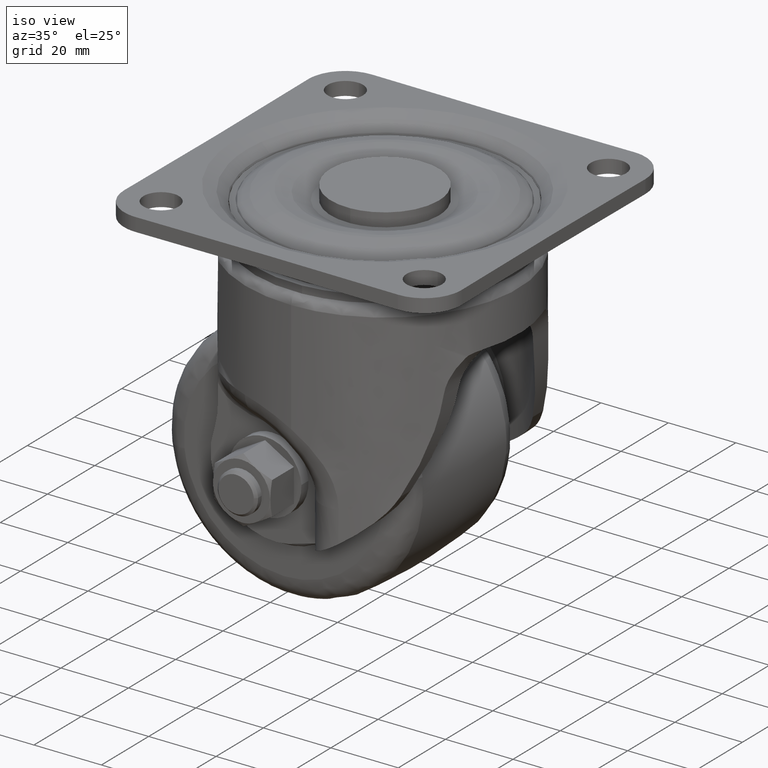
[diagram: clean part render]
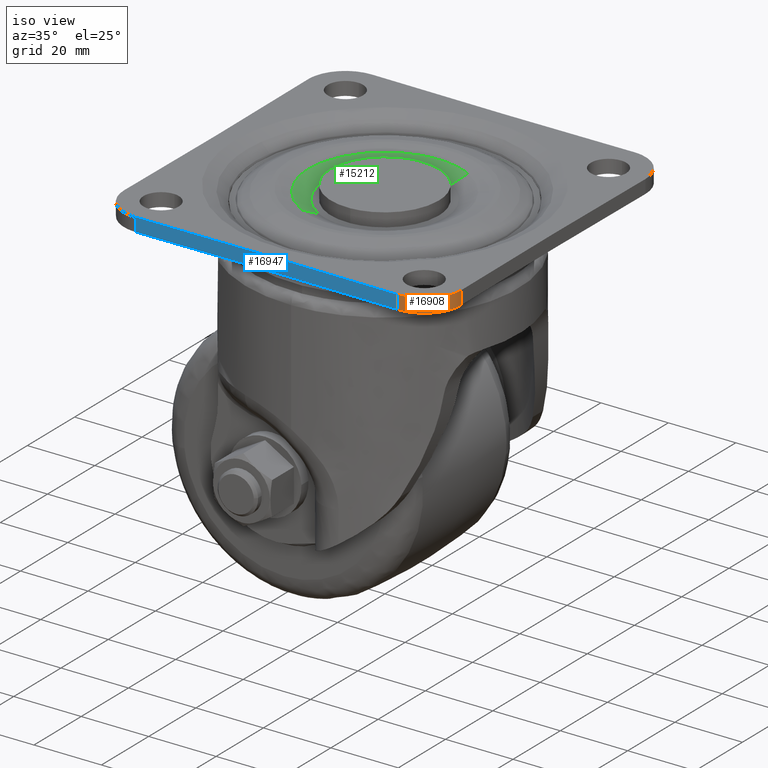
[diagram: same view with three faces highlighted in distinct colors, each labeled with its STEP entity id]
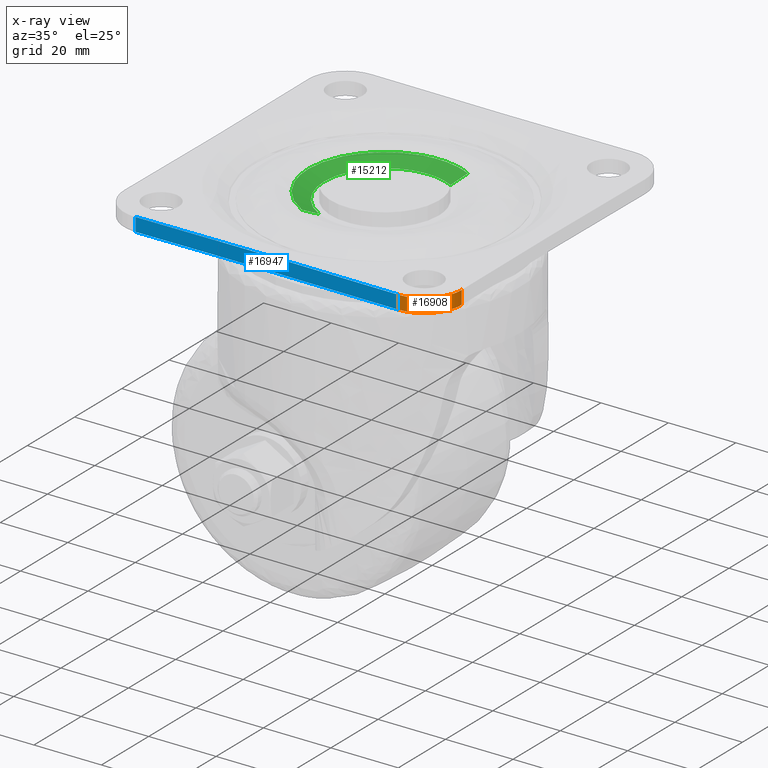
[diagram: x-ray of the same camera — body ghosted, the three highlighted faces saturated]
A machine part, iso view with three faces highlighted in distinct colors.
The next image is the same camera in x-ray (body ghosted, the three faces saturated) — at least one of them is partly hidden behind the body in this view.
Their STEP definitions:

[orange] entity #16908 — the highlighted face is a freeform B-spline surface patch.
#16745=CARTESIAN_POINT('',(38.859112224408648,-49.999107261167403,0.0));
#16746=VERTEX_POINT('',#16745);
#16760=CARTESIAN_POINT('',(49.999086581534897,-38.859138427465403,0.0));
#16761=VERTEX_POINT('',#16760);
#16762=CARTESIAN_POINT('',(38.859112224408648,-49.999107261167403,0.0));
#16763=CARTESIAN_POINT('',(39.590740556758973,-50.008577002566092,0.0));
#16764=CARTESIAN_POINT('',(40.964266549595962,-49.888686975865880,0.0));
#16765=CARTESIAN_POINT('',(42.997153043311819,-49.317301009768997,0.0));
#16766=CARTESIAN_POINT('',(44.725802692958680,-48.458381832613703,0.0));
#16767=CARTESIAN_POINT('',(46.275573588022041,-47.314715594379408,0.0));
#16768=CARTESIAN_POINT('',(47.397399532365583,-46.164546555663833,0.0));
#16769=CARTESIAN_POINT('',(48.449094877443628,-44.720640606517257,0.0));
#16770=CARTESIAN_POINT('',(49.182740579580738,-43.289145202963212,0.0));
#16771=CARTESIAN_POINT('',(49.842686737763252,-41.239177833148617,0.0));
#16772=CARTESIAN_POINT('',(50.011696107789767,-39.819436544613353,0.0));
#16773=CARTESIAN_POINT('',(49.999086581534897,-38.859138427465403,0.0));
#16774=B_SPLINE_CURVE_WITH_KNOTS('',3,(#16762,#16763,#16764,#16765,#16766,#16767,#16768,#16769,#16770,#16771,#16772,#16773),.UNSPECIFIED.,.F.,.U.,(4,1,1,1,1,1,1,1,1,4),(0.000000041236369,2.195061499117408,4.115786445490356,6.310878562661907,7.957221728796965,9.877852845926746,11.112611838742470,13.307715126677600,14.679660456290399,17.560693995647881),.UNSPECIFIED.);
#16775=EDGE_CURVE('',#16746,#16761,#16774,.T.);
#16838=CARTESIAN_POINT('',(49.999086581534897,-38.859138427465403,-4.000005999999945));
#16839=VERTEX_POINT('',#16838);
#16840=CARTESIAN_POINT('',(49.999086581534897,-38.859138427465403,-4.000005999999945));
#16841=CARTESIAN_POINT('',(49.999086581534897,-38.859138427465403,0.0));
#16842=QUASI_UNIFORM_CURVE('',1,(#16840,#16841),.UNSPECIFIED.,.F.,.U.);
#16843=EDGE_CURVE('',#16839,#16761,#16842,.T.);
#16868=CARTESIAN_POINT('',(49.987180441061277,-38.469444145689437,-4.100006149999945));
#16869=CARTESIAN_POINT('',(49.987180441061277,-38.469444145689437,0.102500153749999));
#16870=CARTESIAN_POINT('',(50.593133828491105,-51.014198015991347,-4.100006149999944));
#16871=CARTESIAN_POINT('',(50.593133828491105,-51.014198015991347,0.102500153749999));
#16872=CARTESIAN_POINT('',(38.077966611911556,-49.961288373502860,-4.100006149999945));
#16873=CARTESIAN_POINT('',(38.077966611911556,-49.961288373502860,0.102500153749999));
#16881=(BOUNDED_SURFACE()B_SPLINE_SURFACE(1,2,((#16868,#16870,#16872),(#16869,#16871,#16873)),.UNSPECIFIED.,.F.,.F.,.U.)B_SPLINE_SURFACE_WITH_KNOTS((2,2),(3,3),(0.0,4.202506303749943),(0.0,19.953089833009610),.UNSPECIFIED.)GEOMETRIC_REPRESENTATION_ITEM()RATIONAL_B_SPLINE_SURFACE(((1.0,0.657748627972973,0.996637402236627),(1.0,0.657748627972973,0.996637402236627)))REPRESENTATION_ITEM('')SURFACE());
#16882=ORIENTED_EDGE('',*,*,#16775,.F.);
#16883=CARTESIAN_POINT('',(38.859112224408648,-49.999107261167403,-4.000005999999945));
#16884=VERTEX_POINT('',#16883);
#16885=CARTESIAN_POINT('',(38.859112224408648,-49.999107261167403,-4.000005999999945));
#16886=CARTESIAN_POINT('',(38.859112224408648,-49.999107261167403,0.0));
#16887=QUASI_UNIFORM_CURVE('',1,(#16885,#16886),.UNSPECIFIED.,.F.,.U.);
#16888=EDGE_CURVE('',#16884,#16746,#16887,.T.);
#16889=ORIENTED_EDGE('',*,*,#16888,.F.);
#16890=CARTESIAN_POINT('',(38.859112224408648,-49.999107261167403,-4.000005999999945));
#16891=CARTESIAN_POINT('',(39.590738382218461,-50.008575948493139,-4.000005999999947));
#16892=CARTESIAN_POINT('',(40.872692545834042,-49.896660290224617,-4.000005999999942));
#16893=CARTESIAN_POINT('',(42.910510485957239,-49.351257144265709,-4.000005999999955));
#16894=CARTESIAN_POINT('',(44.652025024700997,-48.512897578222557,-4.000005999999927));
#16895=CARTESIAN_POINT('',(46.275569401386988,-47.314705198689623,-4.000005999999991));
#16896=CARTESIAN_POINT('',(47.397400085875177,-46.164547972837262,-4.000005999999869));
#16897=CARTESIAN_POINT('',(48.449094668650503,-44.720640071935847,-4.000005999999935));
#16898=CARTESIAN_POINT('',(49.182740644349778,-43.289145368793733,-4.000006000000000));
#16899=CARTESIAN_POINT('',(49.842686703560219,-41.239177745577422,-4.000005999999896));
#16900=CARTESIAN_POINT('',(50.011696119351740,-39.819436574215878,-4.000005999999982));
#16901=CARTESIAN_POINT('',(49.999086581534897,-38.859138427465403,-4.000005999999945));
#16902=B_SPLINE_CURVE_WITH_KNOTS('',3,(#16890,#16891,#16892,#16893,#16894,#16895,#16896,#16897,#16898,#16899,#16900,#16901),.UNSPECIFIED.,.F.,.U.,(4,1,1,1,1,1,1,1,1,4),(0.000000041236369,2.195061499117408,3.841396808126236,6.310878562661907,7.957221728796965,9.877852845926746,11.112611838742470,13.307715126677600,14.679660456290399,17.560693995647881),.UNSPECIFIED.);
#16903=EDGE_CURVE('',#16884,#16839,#16902,.T.);
#16904=ORIENTED_EDGE('',*,*,#16903,.T.);
#16905=ORIENTED_EDGE('',*,*,#16843,.T.);
#16906=EDGE_LOOP('',(#16882,#16889,#16904,#16905));
#16907=FACE_OUTER_BOUND('',#16906,.T.);
#16908=ADVANCED_FACE('',(#16907),#16881,.T.);

[blue] entity #16947 — the highlighted face is a freeform B-spline surface patch.
#16729=CARTESIAN_POINT('',(-38.859143584878602,-49.999107511081000,0.0));
#16730=VERTEX_POINT('',#16729);
#16745=CARTESIAN_POINT('',(38.859112224408648,-49.999107261167403,0.0));
#16746=VERTEX_POINT('',#16745);
#16747=CARTESIAN_POINT('',(38.859112224408648,-49.999107261167403,0.0));
#16748=CARTESIAN_POINT('',(-0.000015681835654,-49.500878411463674,0.0));
#16749=CARTESIAN_POINT('',(-38.859143584898099,-49.999107509454802,0.0));
#16757=(BOUNDED_CURVE()B_SPLINE_CURVE(2,(#16747,#16748,#16749),.UNSPECIFIED.,.F.,.U.)CURVE()GEOMETRIC_REPRESENTATION_ITEM()QUASI_UNIFORM_CURVE()RATIONAL_B_SPLINE_CURVE((1.0,0.999917815801585,1.0))REPRESENTATION_ITEM(''));
#16758=EDGE_CURVE('',#16746,#16730,#16757,.T.);
#16883=CARTESIAN_POINT('',(38.859112224408648,-49.999107261167403,-4.000005999999945));
#16884=VERTEX_POINT('',#16883);
#16885=CARTESIAN_POINT('',(38.859112224408648,-49.999107261167403,-4.000005999999945));
#16886=CARTESIAN_POINT('',(38.859112224408648,-49.999107261167403,0.0));
#16887=QUASI_UNIFORM_CURVE('',1,(#16885,#16886),.UNSPECIFIED.,.F.,.U.);
#16888=EDGE_CURVE('',#16884,#16746,#16887,.T.);
#16909=CARTESIAN_POINT('',(-42.740236610172815,-50.051354042444459,-4.100006149999944));
#16910=CARTESIAN_POINT('',(-42.740236610172815,-50.051354042444459,0.102500153749999));
#16911=CARTESIAN_POINT('',(0.000548148207039,-49.448614450071382,-4.100006149999944));
#16912=CARTESIAN_POINT('',(0.000548148207039,-49.448614450071382,0.102500153749999));
#16913=CARTESIAN_POINT('',(42.741332686216353,-50.051369668906467,-4.100006149999944));
#16914=CARTESIAN_POINT('',(42.741332686216353,-50.051369668906467,0.102500153749999));
#16922=(BOUNDED_SURFACE()B_SPLINE_SURFACE(1,2,((#16909,#16911,#16913),(#16910,#16912,#16914)),.UNSPECIFIED.,.F.,.F.,.U.)B_SPLINE_SURFACE_WITH_KNOTS((2,2),(3,3),(0.0,4.202506303749942),(103.628898730468800,189.124641308593710),.UNSPECIFIED.)GEOMETRIC_REPRESENTATION_ITEM()RATIONAL_B_SPLINE_SURFACE(((0.999099411628214,0.998848308997542,0.998795868034798),(0.999099411628214,0.998848308997542,0.998795868034798)))REPRESENTATION_ITEM('')SURFACE());
#16923=ORIENTED_EDGE('',*,*,#16758,.T.);
#16924=CARTESIAN_POINT('',(-38.859143584878602,-49.999107511081000,-4.000005999999945));
#16925=VERTEX_POINT('',#16924);
#16926=CARTESIAN_POINT('',(-38.859143584878602,-49.999107511081000,-4.000005999999945));
#16927=CARTESIAN_POINT('',(-38.859143584878602,-49.999107511081000,0.0));
#16928=QUASI_UNIFORM_CURVE('',1,(#16926,#16927),.UNSPECIFIED.,.F.,.U.);
#16929=EDGE_CURVE('',#16925,#16730,#16928,.T.);
#16930=ORIENTED_EDGE('',*,*,#16929,.F.);
#16931=CARTESIAN_POINT('',(38.859112224408648,-49.999107261167403,-4.000005999999945));
#16932=CARTESIAN_POINT('',(-0.000015681835654,-49.500878411463674,-4.000005999999946));
#16933=CARTESIAN_POINT('',(-38.859143584898099,-49.999107509454802,-4.000005999999945));
#16941=(BOUNDED_CURVE()B_SPLINE_CURVE(2,(#16931,#16932,#16933),.UNSPECIFIED.,.F.,.U.)CURVE()GEOMETRIC_REPRESENTATION_ITEM()QUASI_UNIFORM_CURVE()RATIONAL_B_SPLINE_CURVE((1.0,0.999917815801585,1.0))REPRESENTATION_ITEM(''));
#16942=EDGE_CURVE('',#16884,#16925,#16941,.T.);
#16943=ORIENTED_EDGE('',*,*,#16942,.F.);
#16944=ORIENTED_EDGE('',*,*,#16888,.T.);
#16945=EDGE_LOOP('',(#16923,#16930,#16943,#16944));
#16946=FACE_OUTER_BOUND('',#16945,.T.);
#16947=ADVANCED_FACE('',(#16946),#16922,.F.);

[green] entity #15212 — the highlighted face is a freeform B-spline surface patch.
#14930=CARTESIAN_POINT('',(-10.480602808884299,-20.133050675491731,-1.883008796970517));
#14931=VERTEX_POINT('',#14930);
#14947=CARTESIAN_POINT('',(-22.697637866939900,0.0,-1.883008796979193));
#14948=VERTEX_POINT('',#14947);
#14949=CARTESIAN_POINT('',(-10.480602808884298,-20.133050675491724,-1.883008796970518));
#14950=CARTESIAN_POINT('',(-22.697637866940255,-13.773264768733080,-1.883008796975674));
#14951=CARTESIAN_POINT('',(-22.697637866939900,0.0,-1.883008796979193));
#14959=(BOUNDED_CURVE()B_SPLINE_CURVE(2,(#14949,#14950,#14951),.UNSPECIFIED.,.F.,.U.)B_SPLINE_CURVE_WITH_KNOTS((3,3),(0.828552124121940,1.0),.UNSPECIFIED.)CURVE()GEOMETRIC_REPRESENTATION_ITEM()RATIONAL_B_SPLINE_CURVE((0.873773849651696,0.799136319101383,1.0))REPRESENTATION_ITEM(''));
#14960=EDGE_CURVE('',#14931,#14948,#14959,.T.);
#14962=CARTESIAN_POINT('',(-9.405346878305240,20.657255743164541,-1.883008796969206));
#14963=VERTEX_POINT('',#14962);
#14964=CARTESIAN_POINT('',(-22.697637866939900,0.0,-1.883008796979193));
#14965=CARTESIAN_POINT('',(-22.697637866944486,14.605212378346195,-1.883008796974200));
#14966=CARTESIAN_POINT('',(-9.405346878305240,20.657255743164534,-1.883008796969207));
#14974=(BOUNDED_CURVE()B_SPLINE_CURVE(2,(#14964,#14965,#14966),.UNSPECIFIED.,.F.,.U.)B_SPLINE_CURVE_WITH_KNOTS((3,3),(0.0,0.179624510041870),.UNSPECIFIED.)CURVE()GEOMETRIC_REPRESENTATION_ITEM()RATIONAL_B_SPLINE_CURVE((1.0,0.789556796304189,0.881519651452390))REPRESENTATION_ITEM(''));
#14975=EDGE_CURVE('',#14948,#14963,#14974,.T.);
#15056=CARTESIAN_POINT('',(10.480602808884290,20.133050675491731,-1.883008796970520));
#15057=VERTEX_POINT('',#15056);
#15058=CARTESIAN_POINT('',(-9.405346878305240,20.657255743164534,-1.883008796969207));
#15059=CARTESIAN_POINT('',(-4.923992188212670,22.697637866960498,-1.883008796969205));
#15060=CARTESIAN_POINT('',(-5.519794E-012,22.697637866960360,-1.883008796969513));
#15061=CARTESIAN_POINT('',(5.554076651081838,22.697637866960203,-1.883008796969860));
#15062=CARTESIAN_POINT('',(10.480602808884294,20.133050675491734,-1.883008796970520));
#15070=(BOUNDED_CURVE()B_SPLINE_CURVE(2,(#15058,#15059,#15060,#15061,#15062),.UNSPECIFIED.,.F.,.U.)B_SPLINE_CURVE_WITH_KNOTS((3,2,3),(0.179624510041870,0.250000000000000,0.328552124121940),.UNSPECIFIED.)CURVE()GEOMETRIC_REPRESENTATION_ITEM()RATIONAL_B_SPLINE_CURVE((0.881519651452390,0.917549984882358,1.0,0.907970462085164,0.873773849651696))REPRESENTATION_ITEM(''));
#15071=EDGE_CURVE('',#14963,#15057,#15070,.T.);
#15110=CARTESIAN_POINT('',(8.311475038278250,15.966194997187410,-4.000005999998247));
#15111=VERTEX_POINT('',#15110);
#15112=CARTESIAN_POINT('',(8.311475038278250,15.966194997187410,-4.000005999998247));
#15113=CARTESIAN_POINT('',(10.480602808884290,20.133050675491731,-1.883008796970520));
#15114=QUASI_UNIFORM_CURVE('',1,(#15112,#15113),.UNSPECIFIED.,.F.,.U.);
#15115=EDGE_CURVE('',#15111,#15057,#15114,.T.);
#15132=CARTESIAN_POINT('',(-8.311475038278250,-15.966194997187410,-4.000005999998248));
#15133=VERTEX_POINT('',#15132);
#15149=CARTESIAN_POINT('',(-8.311475038278250,-15.966194997187410,-4.000005999998248));
#15150=CARTESIAN_POINT('',(-10.480602808884299,-20.133050675491731,-1.883008796970517));
#15151=QUASI_UNIFORM_CURVE('',1,(#15149,#15150),.UNSPECIFIED.,.F.,.U.);
#15152=EDGE_CURVE('',#15133,#14931,#15151,.T.);
#15157=CARTESIAN_POINT('',(8.257246843966861,15.862023605249419,-4.052930930075698));
#15158=CARTESIAN_POINT('',(-7.604776761282555,24.119270449216280,-4.052930930075699));
#15159=CARTESIAN_POINT('',(-15.862023605249419,8.257246843966861,-4.052930930075698));
#15160=CARTESIAN_POINT('',(-24.119270449216280,-7.604776761282555,-4.052930930075699));
#15161=CARTESIAN_POINT('',(-8.257246843966861,-15.862023605249419,-4.052930930075698));
#15162=CARTESIAN_POINT('',(10.536186707901081,20.239826352309141,-1.828760743641544));
#15163=CARTESIAN_POINT('',(-9.703639644408069,30.776013060210222,-1.828760743641544));
#15164=CARTESIAN_POINT('',(-20.239826352309141,10.536186707901081,-1.828760743641544));
#15165=CARTESIAN_POINT('',(-30.776013060210222,-9.703639644408069,-1.828760743641544));
#15166=CARTESIAN_POINT('',(-10.536186707901081,-20.239826352309141,-1.828760743641544));
#15174=(BOUNDED_SURFACE()B_SPLINE_SURFACE(2,1,((#15157,#15162),(#15158,#15163),(#15159,#15164),(#15160,#15165),(#15161,#15166)),.UNSPECIFIED.,.F.,.F.,.U.)B_SPLINE_SURFACE_WITH_KNOTS((3,2,3),(2,2),(0.0,37.806124848165631,75.612249696331261),(0.0,5.413469942081026),.UNSPECIFIED.)GEOMETRIC_REPRESENTATION_ITEM()RATIONAL_B_SPLINE_SURFACE(((1.0,1.0),(0.707106781186548,0.707106781186548),(1.0,1.0),(0.707106781186548,0.707106781186548),(1.0,1.0)))REPRESENTATION_ITEM('')SURFACE());
#15175=ORIENTED_EDGE('',*,*,#14960,.F.);
#15176=ORIENTED_EDGE('',*,*,#15152,.F.);
#15177=CARTESIAN_POINT('',(-18.0,0.0,-4.000005999999929));
#15178=VERTEX_POINT('',#15177);
#15179=CARTESIAN_POINT('',(-8.311475038278250,-15.966194997187404,-4.000005999998248));
#15180=CARTESIAN_POINT('',(-18.000000000000860,-10.922668133628978,-4.000005999999088));
#15181=CARTESIAN_POINT('',(-18.0,0.0,-4.000005999999929));
#15189=(BOUNDED_CURVE()B_SPLINE_CURVE(2,(#15179,#15180,#15181),.UNSPECIFIED.,.F.,.U.)B_SPLINE_CURVE_WITH_KNOTS((3,3),(0.828552124121505,1.0),.UNSPECIFIED.)CURVE()GEOMETRIC_REPRESENTATION_ITEM()RATIONAL_B_SPLINE_CURVE((0.873773849652075,0.799136319100874,1.0))REPRESENTATION_ITEM(''));
#15190=EDGE_CURVE('',#15133,#15178,#15189,.T.);
#15191=ORIENTED_EDGE('',*,*,#15190,.T.);
#15192=CARTESIAN_POINT('',(-18.0,0.0,-4.000005999999929));
#15193=CARTESIAN_POINT('',(-17.999999999999485,18.000000000001013,-4.000005999999417));
#15194=CARTESIAN_POINT('',(1.388606E-012,18.000000000002661,-4.000005999998577));
#15195=CARTESIAN_POINT('',(4.404571978151647,18.000000000003073,-4.000005999998372));
#15196=CARTESIAN_POINT('',(8.311475038278250,15.966194997187417,-4.000005999998247));
#15204=(BOUNDED_CURVE()B_SPLINE_CURVE(2,(#15192,#15193,#15194,#15195,#15196),.UNSPECIFIED.,.F.,.U.)B_SPLINE_CURVE_WITH_KNOTS((3,2,3),(0.0,0.250000000000000,0.328552124121505),.UNSPECIFIED.)CURVE()GEOMETRIC_REPRESENTATION_ITEM()RATIONAL_B_SPLINE_CURVE((1.0,0.707106781186547,1.0,0.907970462085674,0.873773849652075))REPRESENTATION_ITEM(''));
#15205=EDGE_CURVE('',#15178,#15111,#15204,.T.);
#15206=ORIENTED_EDGE('',*,*,#15205,.T.);
#15207=ORIENTED_EDGE('',*,*,#15115,.T.);
#15208=ORIENTED_EDGE('',*,*,#15071,.F.);
#15209=ORIENTED_EDGE('',*,*,#14975,.F.);
#15210=EDGE_LOOP('',(#15175,#15176,#15191,#15206,#15207,#15208,#15209));
#15211=FACE_OUTER_BOUND('',#15210,.T.);
#15212=ADVANCED_FACE('',(#15211),#15174,.F.);